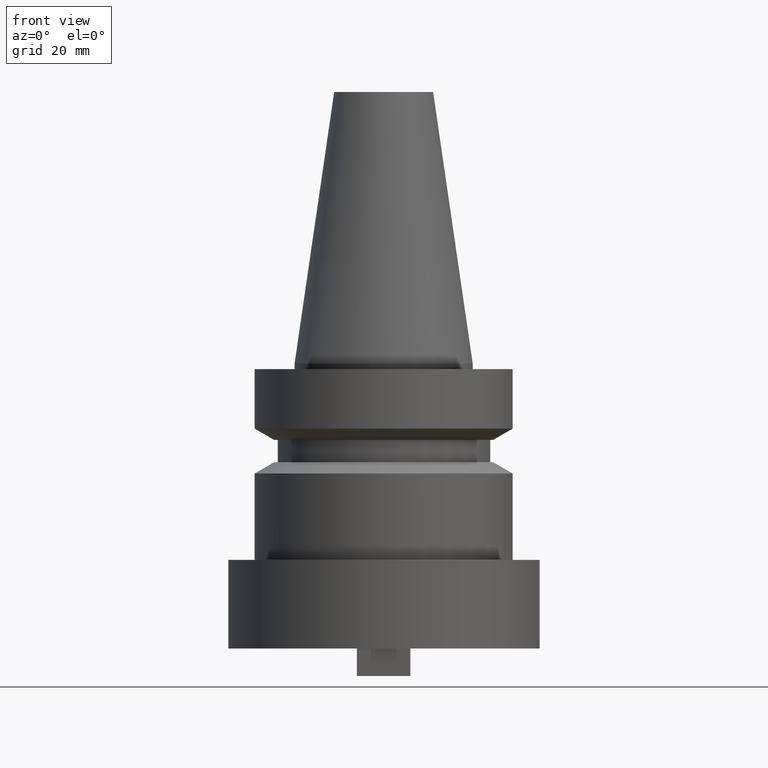
[diagram: clean part render]
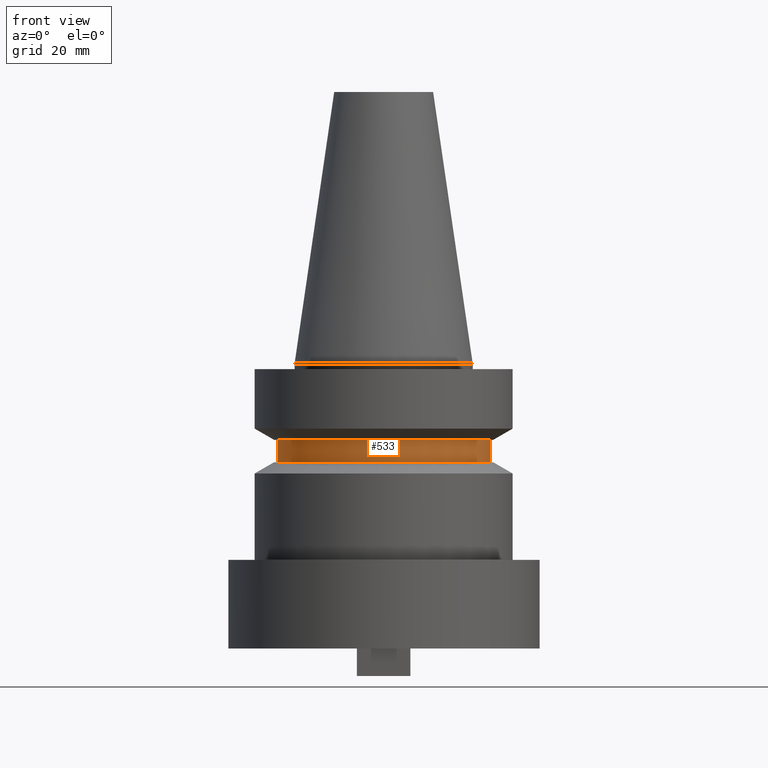
[diagram: same view with one face highlighted and labeled with its STEP entity id]
A machine part, front view. The second image highlights one B-rep face of the part: STEP entity #533.
In plain terms, the highlighted cylindrical surface (bore or boss wall) has radius 19 mm, axis along (-0, -0, 1).
Its self-contained STEP definition (entity closure, byte-faithful):
#10 = AXIS2_PLACEMENT_3D ( 'NONE', #590, #228, #594 ) ;
#40 = EDGE_LOOP ( 'NONE', ( #408 ) ) ;
#89 = VERTEX_POINT ( 'NONE', #456 ) ;
#175 = CARTESIAN_POINT ( 'NONE',  ( 0.000000000000000000, 0.000000000000000000, -17.60014200631680836 ) ) ;
#224 = CARTESIAN_POINT ( 'NONE',  ( 0.000000000000000000, 0.000000000000000000, 48.39999999999998437 ) ) ;
#228 = DIRECTION ( 'NONE',  ( -0.000000000000000000, -0.000000000000000000, 1.000000000000000000 ) ) ;
#233 = CYLINDRICAL_SURFACE ( 'NONE', #669, 19.00000000000000355 ) ;
#253 = EDGE_LOOP ( 'NONE', ( #446 ) ) ;
#346 = CIRCLE ( 'NONE', #546, 19.00000000000000355 ) ;
#408 = ORIENTED_EDGE ( 'NONE', *, *, #650, .F. ) ;
#446 = ORIENTED_EDGE ( 'NONE', *, *, #622, .T. ) ;
#456 = CARTESIAN_POINT ( 'NONE',  ( 19.00000000000000355, 0.000000000000000000, -13.60014200631680303 ) ) ;
#463 = CARTESIAN_POINT ( 'NONE',  ( 19.00000000000000355, 0.000000000000000000, -17.60014200631680836 ) ) ;
#482 = DIRECTION ( 'NONE',  ( -0.000000000000000000, -0.000000000000000000, 1.000000000000000000 ) ) ;
#496 = FACE_OUTER_BOUND ( 'NONE', #40, .T. ) ;
#533 = ADVANCED_FACE ( 'NONE', ( #496, #551 ), #233, .T. ) ;
#538 = DIRECTION ( 'NONE',  ( 1.000000000000000000, 0.000000000000000000, 0.000000000000000000 ) ) ;
#546 = AXIS2_PLACEMENT_3D ( 'NONE', #175, #653, #538 ) ;
#551 = FACE_OUTER_BOUND ( 'NONE', #253, .T. ) ;
#590 = CARTESIAN_POINT ( 'NONE',  ( 0.000000000000000000, 0.000000000000000000, -13.60014200631680303 ) ) ;
#594 = DIRECTION ( 'NONE',  ( 1.000000000000000000, 0.000000000000000000, 0.000000000000000000 ) ) ;
#602 = CIRCLE ( 'NONE', #10, 19.00000000000000355 ) ;
#622 = EDGE_CURVE ( 'NONE', #673, #673, #346, .T. ) ;
#642 = DIRECTION ( 'NONE',  ( 1.000000000000000000, 0.000000000000000000, 0.000000000000000000 ) ) ;
#650 = EDGE_CURVE ( 'NONE', #89, #89, #602, .T. ) ;
#653 = DIRECTION ( 'NONE',  ( -0.000000000000000000, -0.000000000000000000, 1.000000000000000000 ) ) ;
#669 = AXIS2_PLACEMENT_3D ( 'NONE', #224, #482, #642 ) ;
#673 = VERTEX_POINT ( 'NONE', #463 ) ;